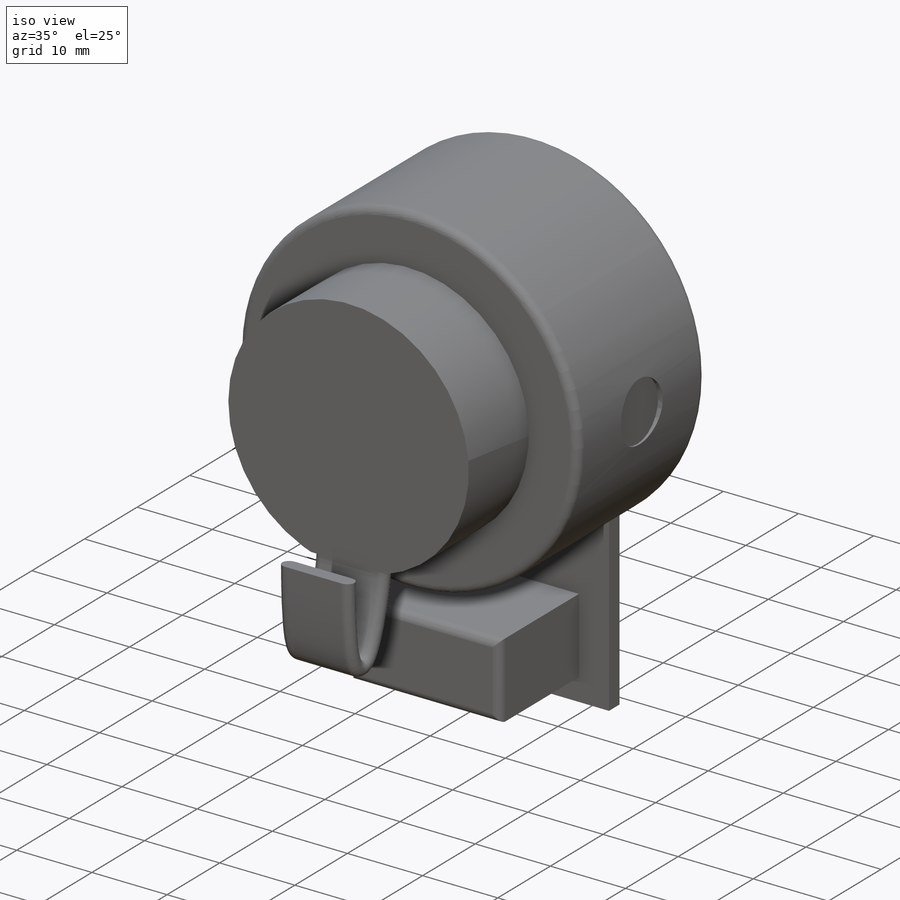
[diagram: iso view]
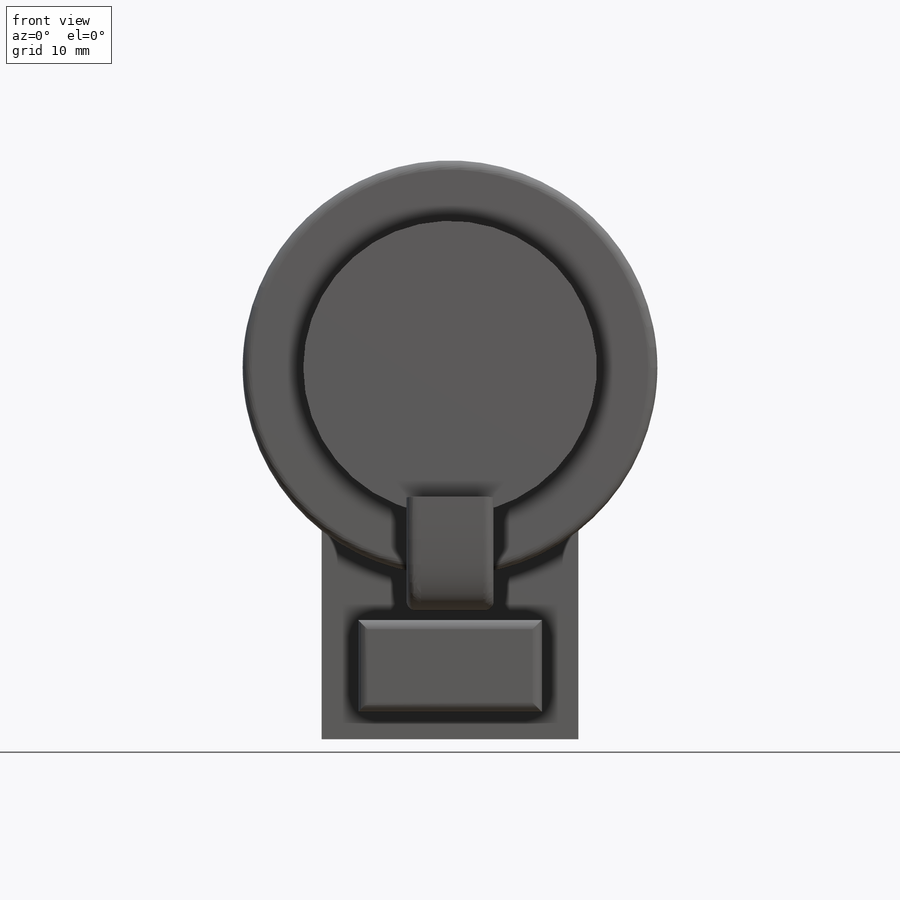
[diagram: front view]
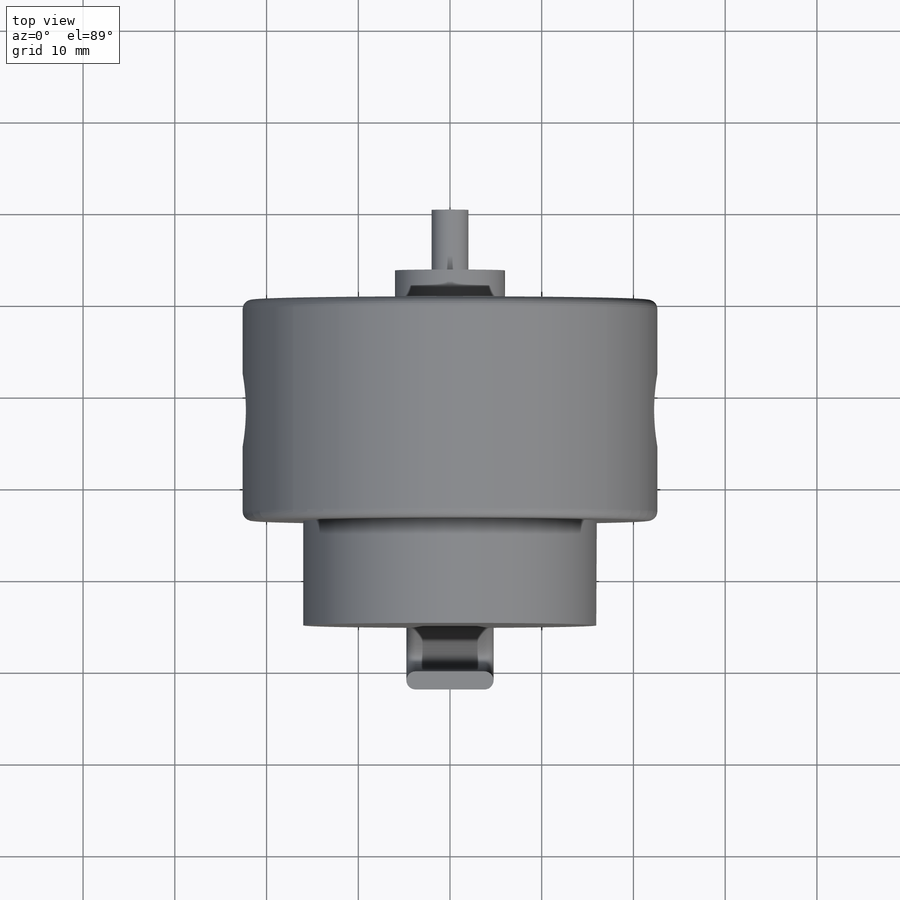
[diagram: top view]
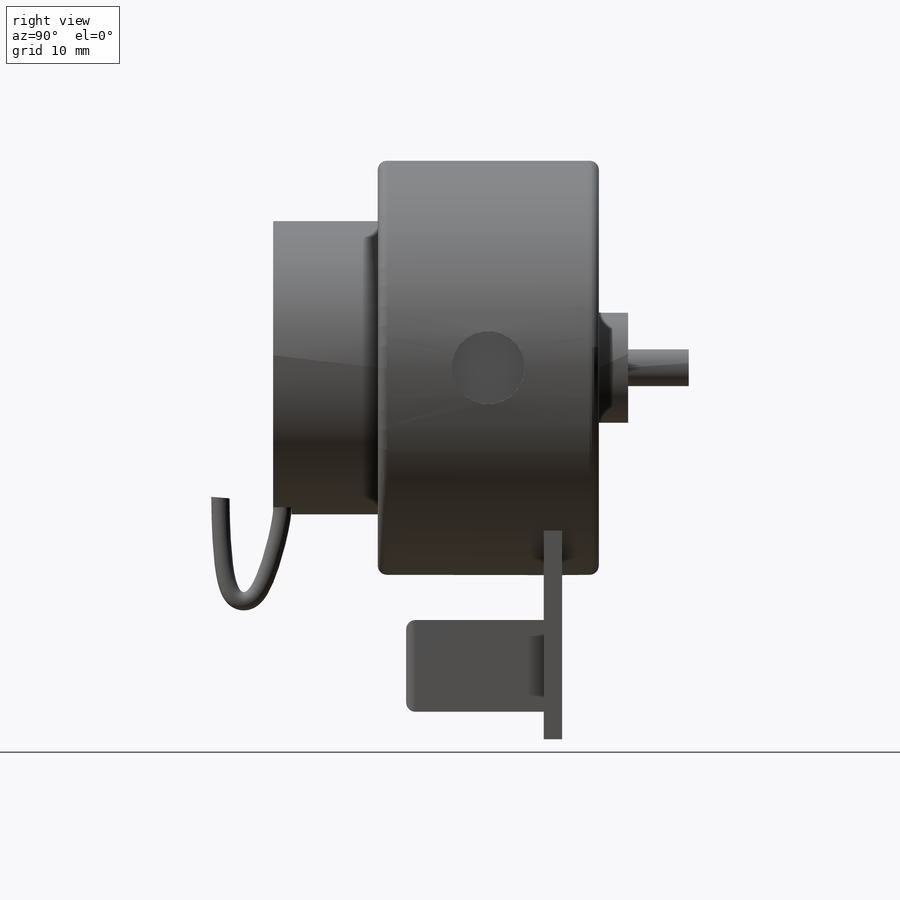
[diagram: right view]
SOLIDWORKS PART (.sldprt)
format: sldprt  version: not decoded by parser v0  size: 422,912 bytes
history: native  units: mm
features: sketch x12, extrude x6, plane x2, cut_extrude x2, fillet x2, material x1, hole x1, mirror x1, sweep x1 (+13 scaffold rows collapsed)
feature tree (41):
  scaffold x13  (default folders/planes/origin — collapsed)
  material  "Material <not specified>"
  sketch  "Sketch1"  dims[D1=45.2mm]
  extrude  "Boss-Extrude1"  Depth=24.1mm
  sketch  "Sketch2"  dims[D1=12.0mm]
  extrude  "Boss-Extrude2"  Depth=3.2mm
  sketch  "Sketch3"  dims[D1=~1.767121mm]
  extrude  "Boss-Extrude3"  Depth=6.6mm
  sketch  "Sketch4"  dims[D1=32.0mm]
  extrude  "Boss-Extrude4"  Depth=11.4mm
  hole  "M3x0.5 Tapped Hole1"  Diameter=2.5mm Depth=8.5mm
  sketch  "Sketch7"  dims[D1=11.0mm D2=0.0mm D3=3.0]
  sketch  "Sketch6"  dims[hole-wizard template sketch: 50 standard entries collapsed; hole parameters above]
  plane  "Plane1"  Offset=23mm
  sketch  "Sketch8"  dims[D1=12.05mm]
  cut_extrude  "Cut-Extrude1"  Depth=1mm
  mirror  "Mirror1"
  plane  "Plane2"  Offset=40.5mm
  sketch  "Sketch9"  dims[D1=28.0mm D2=2.0mm D3=4.0mm D4=14.0mm]
  extrude  "Boss-Extrude5"  Depth=25mm
  sketch  "Sketch10"  dims[D1=20.0mm D2=10.0mm D3=3.0mm D4=4.0mm]
  extrude  "Boss-Extrude6"  Depth=15mm
  sketch  "Sketch11"  dims[D1=10.0mm D2=0.0mm]
  cut_extrude  "Cut-Extrude2"  Depth=2mm
  sketch  "Sketch12"  dims[c1.D1=1.0mm c1.D2=~1.376898mm c2.D2=90.0deg c3.D2=1.0mm c3.D3=7.5mm c3.D4=1.25mm]
  sketch  "Sketch13"
  sweep  "Sweep1"
  fillet  "Fillet4"  Radius=1mm
  fillet  "Fillet6"  Radius=1mm
decode coverage: 22 of 25 modeling features carry decoded parameters
note: ~ marks probable driven/reference dimensions
note: suppression state not decoded; provenance and decode notes live in map.json
